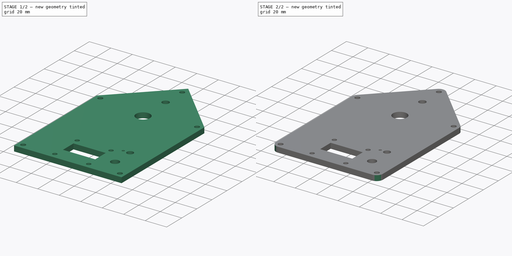
[diagram: build sequence overview — one tinted view per stage of 2, left to right]
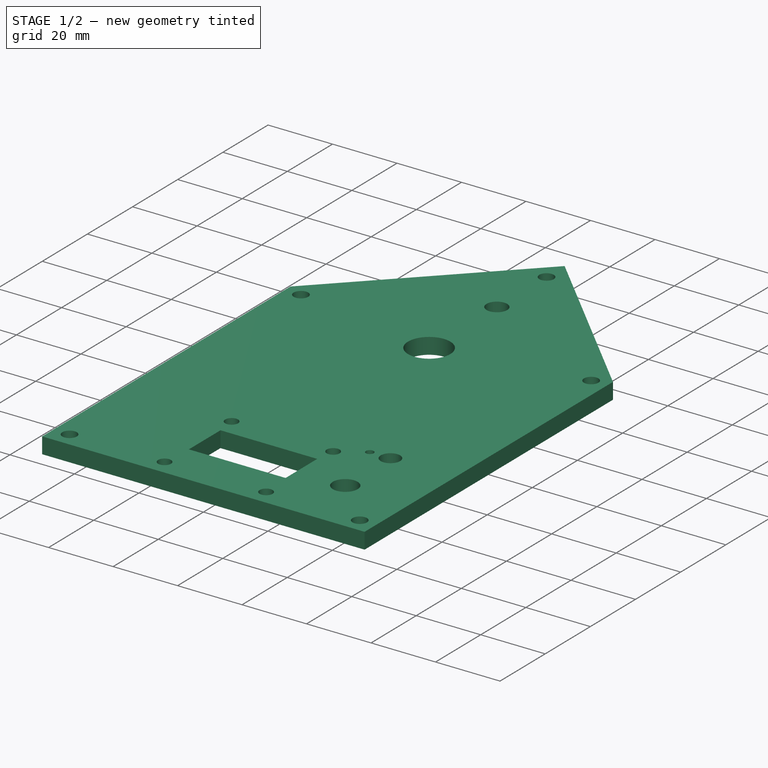
[diagram: stage 1 of 2 — iso view after this stage's code; geometry added in this stage tinted green]
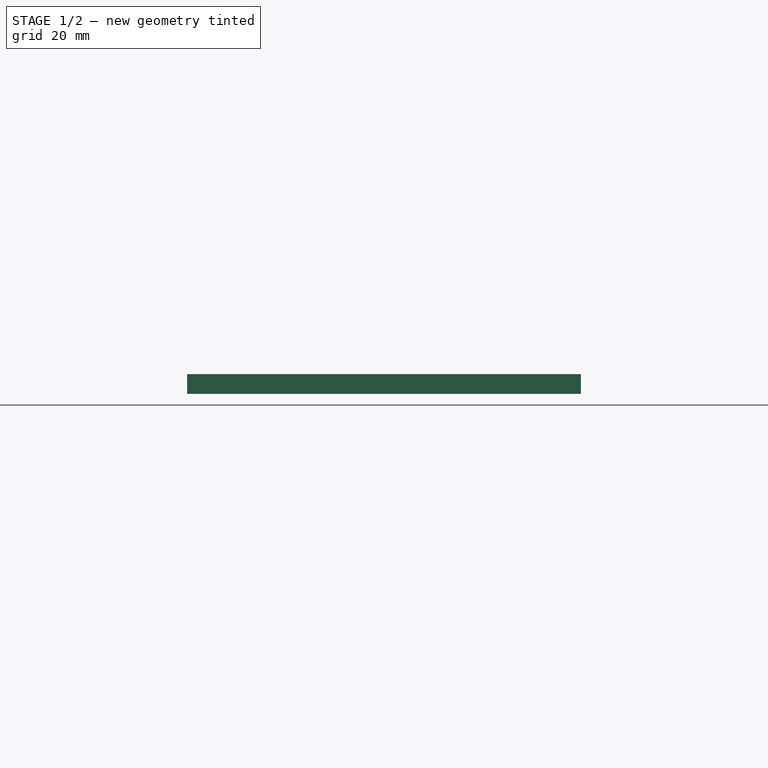
[diagram: stage 1 of 2 — front view after this stage's code; geometry added in this stage tinted green]
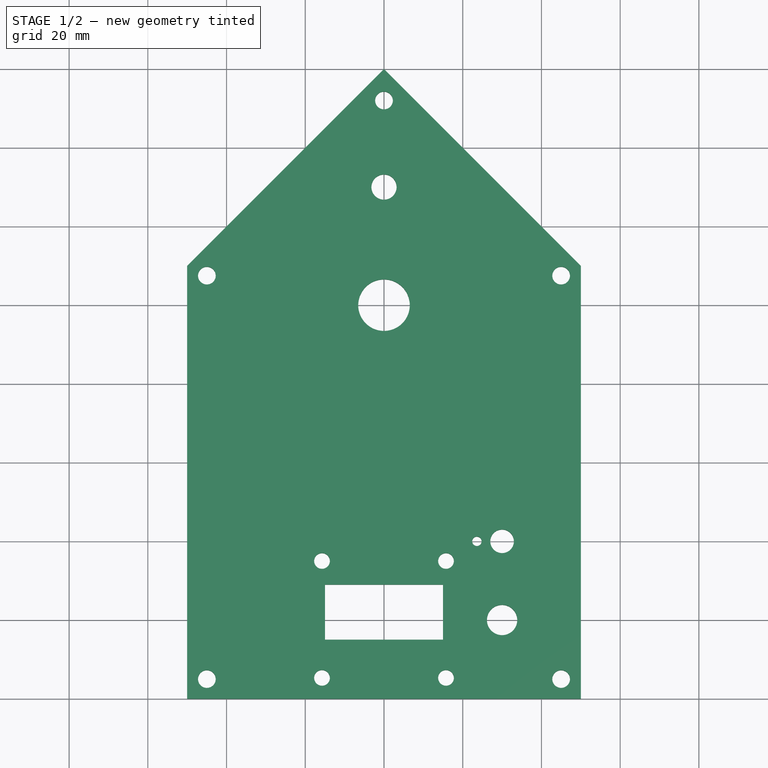
[diagram: stage 1 of 2 — top view after this stage's code; geometry added in this stage tinted green]
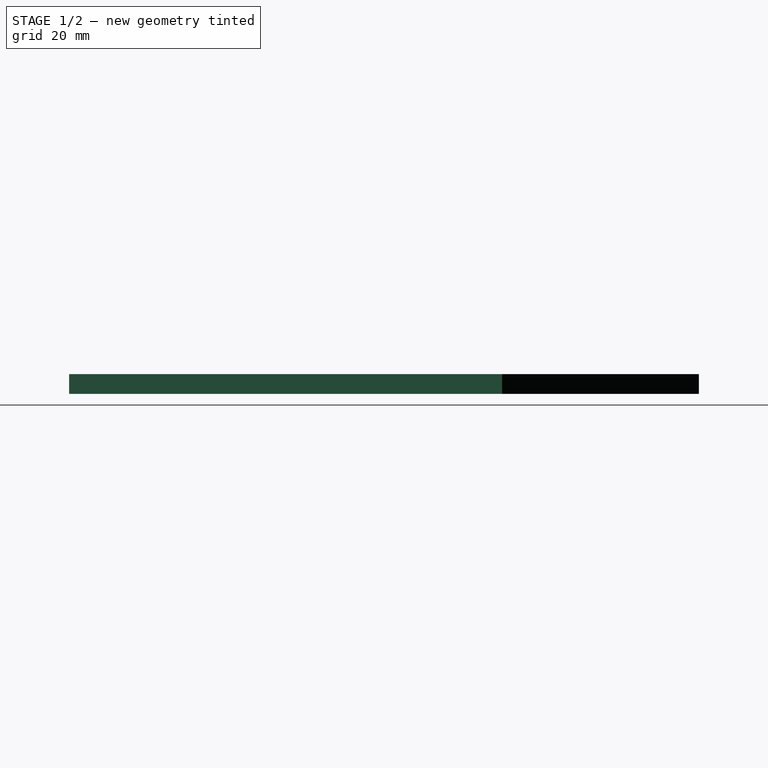
[diagram: stage 1 of 2 — right view after this stage's code; geometry added in this stage tinted green]
FCSTD DOCUMENT  (FreeCAD 0.18R16131 (Git))
Label: Top_Plate
License: All rights reserved
LicenseURL: http://en.wikipedia.org/wiki/All_rights_reserved
objects: Sketcher::SketchObject×1, PartDesign::Pad×1, PartDesign::Fillet×1, PartDesign::Body×1, Part::Feature×1
note: 6 computed .brp shape members not serialized (recipe doc carries the construction recipe); baked Part::Feature solids carry a one-line shape summary decoded from their .brp

FEATURE [Sketcher::SketchObject] Sketch
  MapMode = 5
  Support = -> [XY_Plane]
  sketch-geometry (23):
    g0: Circle CenterX=0 CenterY=0 CenterZ=0 NormalX=0 NormalY=0 NormalZ=1 AngleXU=0 Radius=6.55
    g1: LineSegment StartX=-50 StartY=-100 StartZ=0 EndX=50 EndY=-100 EndZ=0
    g2: LineSegment StartX=50 StartY=-100 StartZ=0 EndX=50 EndY=10 EndZ=0
    g3: LineSegment StartX=50 StartY=10 StartZ=0 EndX=0 EndY=60 EndZ=0
    g4: LineSegment StartX=0 StartY=60 StartZ=0 EndX=-50 EndY=10 EndZ=0
    g5: LineSegment StartX=-50 StartY=10 StartZ=0 EndX=-50 EndY=-100 EndZ=0
    g6: Circle CenterX=0 CenterY=30 CenterZ=0 NormalX=0 NormalY=0 NormalZ=1 AngleXU=0 Radius=3.2
    g7: Circle CenterX=0 CenterY=52 CenterZ=0 NormalX=0 NormalY=0 NormalZ=1 AngleXU=0 Radius=2.25
    g8: Circle CenterX=-45 CenterY=7.5 CenterZ=0 NormalX=0 NormalY=0 NormalZ=1 AngleXU=0 Radius=2.25
    g9: Circle CenterX=45 CenterY=7.5 CenterZ=0 NormalX=0 NormalY=0 NormalZ=1 AngleXU=0 Radius=2.25
    g10: Circle CenterX=-45 CenterY=-95 CenterZ=0 NormalX=0 NormalY=0 NormalZ=1 AngleXU=0 Radius=2.25
    g11: Circle CenterX=45 CenterY=-95 CenterZ=0 NormalX=0 NormalY=0 NormalZ=1 AngleXU=0 Radius=2.25
    g12: Circle CenterX=30 CenterY=-80 CenterZ=0 NormalX=0 NormalY=0 NormalZ=1 AngleXU=0 Radius=3.85
    g13: LineSegment StartX=-15 StartY=-85 StartZ=0 EndX=15 EndY=-85 EndZ=0
    g14: LineSegment StartX=15 StartY=-85 StartZ=0 EndX=15 EndY=-71 EndZ=0
    g15: LineSegment StartX=15 StartY=-71 StartZ=0 EndX=-15 EndY=-71 EndZ=0
    g16: LineSegment StartX=-15 StartY=-71 StartZ=0 EndX=-15 EndY=-85 EndZ=0
    g17: Circle CenterX=-15.75 CenterY=-65 CenterZ=0 NormalX=0 NormalY=0 NormalZ=1 AngleXU=0 Radius=2
    g18: Circle CenterX=15.75 CenterY=-65 CenterZ=0 NormalX=0 NormalY=0 NormalZ=1 AngleXU=0 Radius=2
    g19: Circle CenterX=15.75 CenterY=-94.7 CenterZ=0 NormalX=0 NormalY=0 NormalZ=1 AngleXU=0 Radius=2
    g20: Circle CenterX=-15.75 CenterY=-94.7 CenterZ=0 NormalX=0 NormalY=0 NormalZ=1 AngleXU=0 Radius=2
    g21: Circle CenterX=30 CenterY=-60 CenterZ=0 NormalX=0 NormalY=0 NormalZ=1 AngleXU=0 Radius=3
    g22: Circle CenterX=23.6 CenterY=-60 CenterZ=0 NormalX=0 NormalY=0 NormalZ=1 AngleXU=0 Radius=1.2
  constraints (62):
    c: Coincident(g0,g-1)
    c: Radius(g0) = 6.55
    c: Coincident(g2,g1)
    c: Vertical(g2)
    c: Coincident(g3,g2)
    c: PointOnObject(g3,g-2)
    c: Coincident(g4,g3)
    c: Coincident(g5,g4)
    c: Coincident(g5,g1)
    c: Symmetric(g1,g1,g-2)
    c: Symmetric(g2,g4,g-2)
    c: DistanceX(g4,g2) = 100
    c: PointOnObject(g6,g-2)
    c: Radius(g6) = 3.2
    c: Angle(g3,g2) = 2.35619
    c: PointOnObject(g7,g-2)
    c: Symmetric(g8,g9,g-2)
    c: Symmetric(g10,g11,g-2)
    c: Radius(g7) = 2.25
    c: Equal(g7,g8)
    c: Equal(g7,g10)
    c: Equal(g7,g11)
    c: Equal(g7,g9)
    c: DistanceY(g8,g4) = 2.5
    c: DistanceX(g4,g8) = 5
    c: DistanceY(g2,g2) = 110
    c: DistanceX(g1,g10) = 5
    c: DistanceY(g1,g10) = 5
    c: DistanceY(g-1,g3) = 60
    c: DistanceY(g7,g3) = 8
    c: DistanceY(g-1,g6) = 30
    c: Radius(g12) = 3.85
    c: Coincident(g13,g14)
    c: Coincident(g14,g15)
    c: Coincident(g15,g16)
    c: Coincident(g16,g13)
    c: Horizontal(g13)
    c: Vertical(g14)
    c: Vertical(g16)
    c: DistanceY(g16,g16) = 14
    c: DistanceX(g15,g15) = 30
    c: Symmetric(g15,g14,g-2)
    c: Vertical(g17,g20)
    c: Vertical(g18,g19)
    c: Horizontal(g19,g20)
    c: Symmetric(g17,g18,g-2)
    c: DistanceX(g17,g18) = 31.5
    c: DistanceY(g20,g17) = 29.7
    c: DistanceY(g15,g17) = 6
    c: Radius(g21) = 3
    c: Radius(g22) = 1.2
    c: Radius(g17) = 2
    c: Equal(g17,g20)
    c: Equal(g17,g19)
    c: Equal(g17,g18)
    c: DistanceY(g1,g13) = 15
    c: DistanceX(g22,g21) = 6.4
    c: Horizontal(g21,g22)
    c: Vertical(g12,g21)
    c: DistanceX(g12,g1) = 20
    c: DistanceY(g1,g12) = 20
    c: DistanceY(g12,g21) = 20
FEATURE [PartDesign::Pad] Pad
  Length = 5
  Length2 = 100
  Profile = -> Sketch
  Type = 0
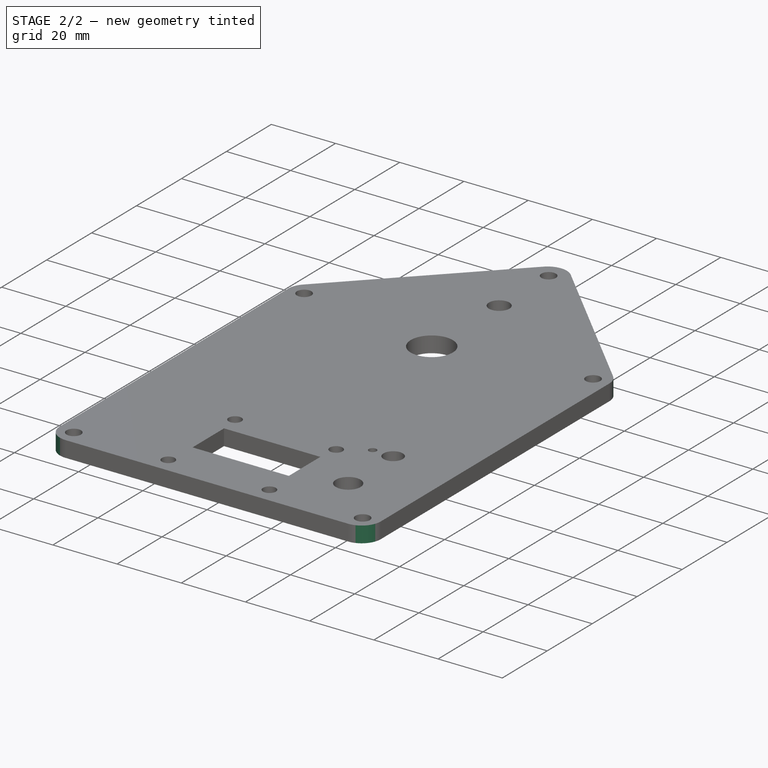
[diagram: stage 2 of 2 — iso view after this stage's code; geometry added in this stage tinted green]
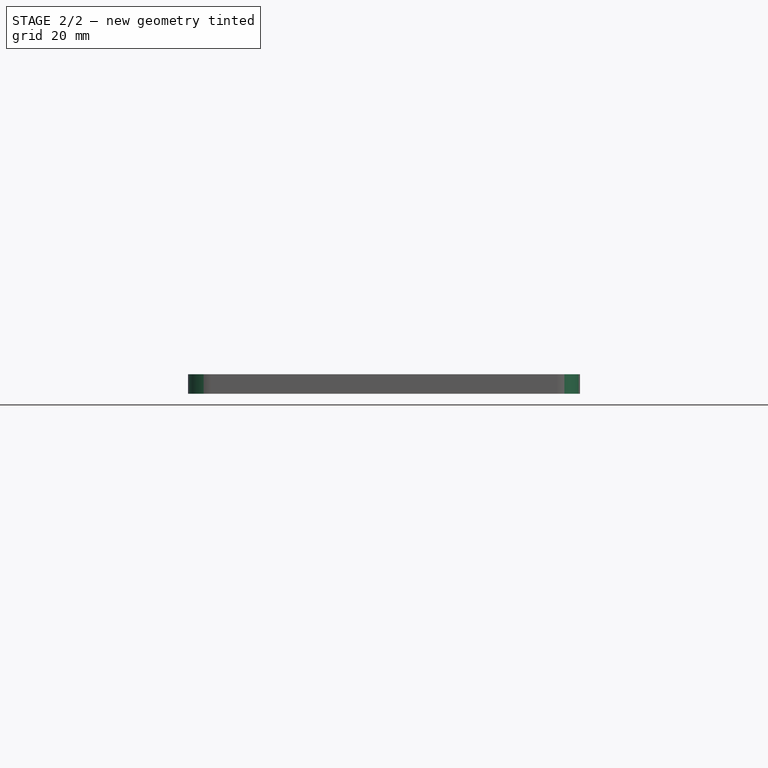
[diagram: stage 2 of 2 — front view after this stage's code; geometry added in this stage tinted green]
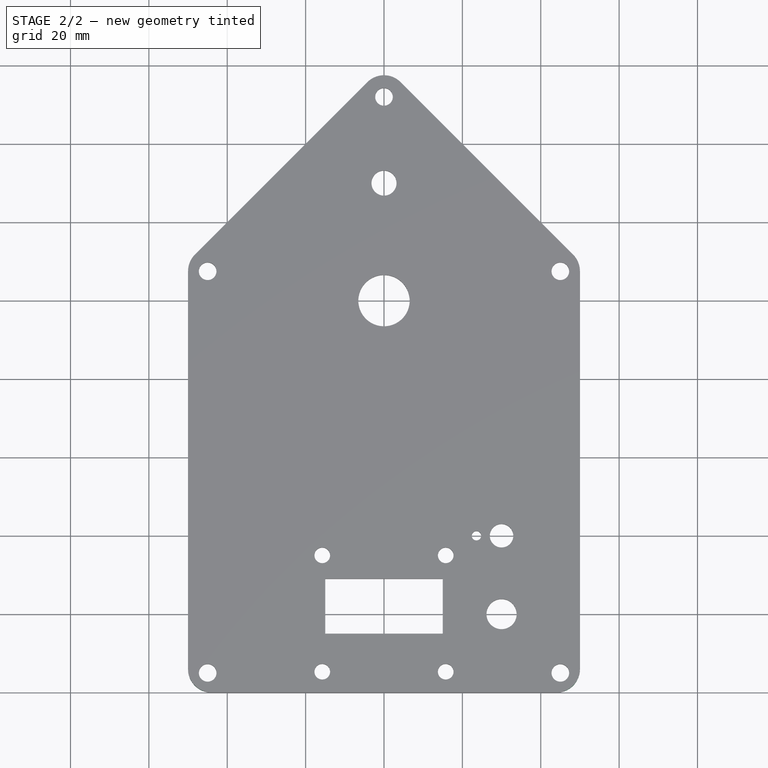
[diagram: stage 2 of 2 — top view after this stage's code; geometry added in this stage tinted green]
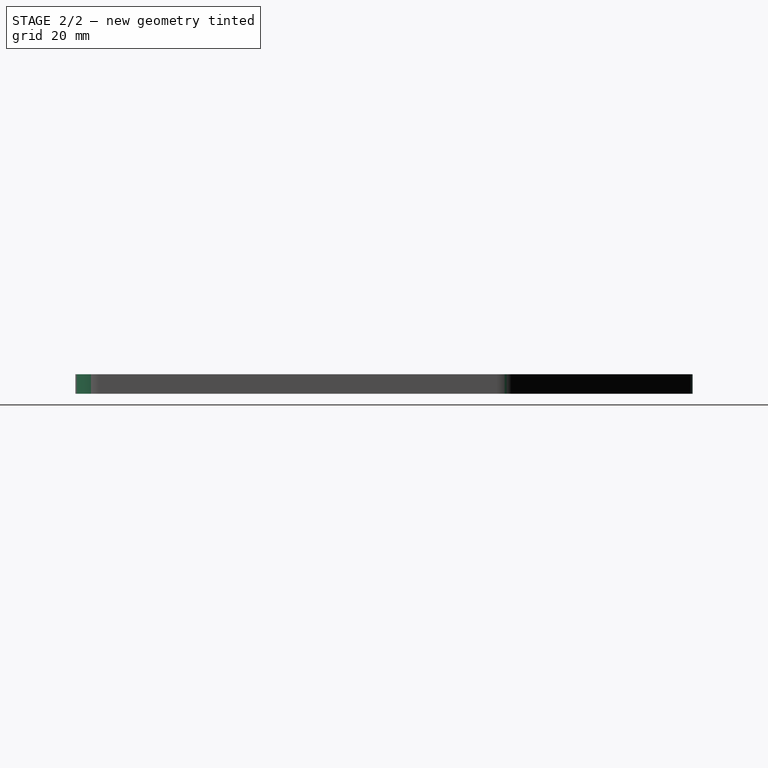
[diagram: stage 2 of 2 — right view after this stage's code; geometry added in this stage tinted green]
FEATURE [PartDesign::Fillet] Fillet
  Base = -> Pad [Edge2,Edge1,Edge11,Edge8,Edge5]
  BaseFeature = -> Pad
  Radius = 6
FEATURE [PartDesign::Body] Body
  Group = -> [Sketch,Pad,Fillet]
  Origin = -> Origin
  Tip = -> Fillet
FEATURE [Part::Feature] Chamfer002001  label="Chamfer003"
  shape: bbox 100 x 157.5 x 6 mm, 49 faces (baked)
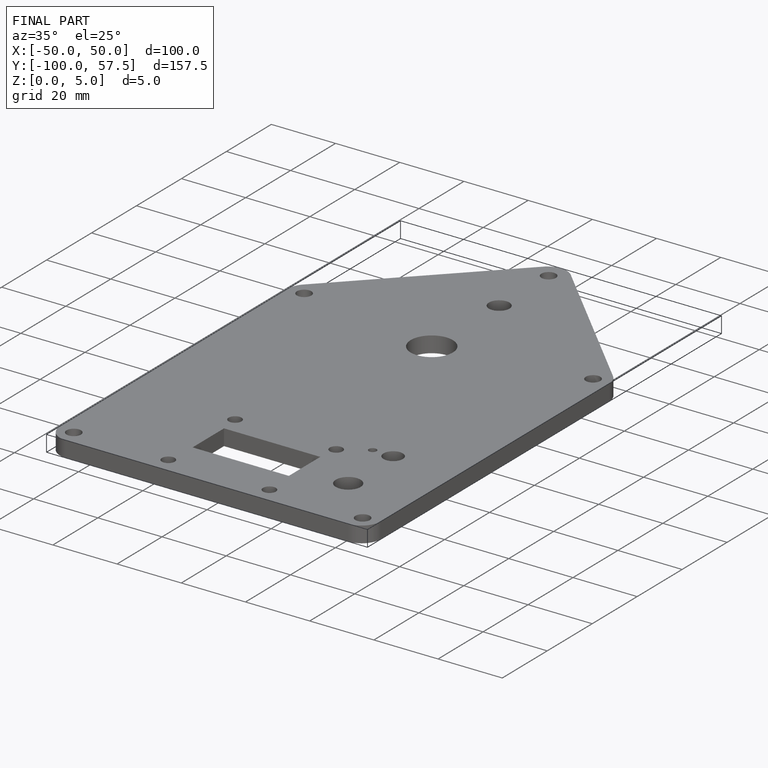
[diagram: finished part — iso view with bounding-box wireframe]
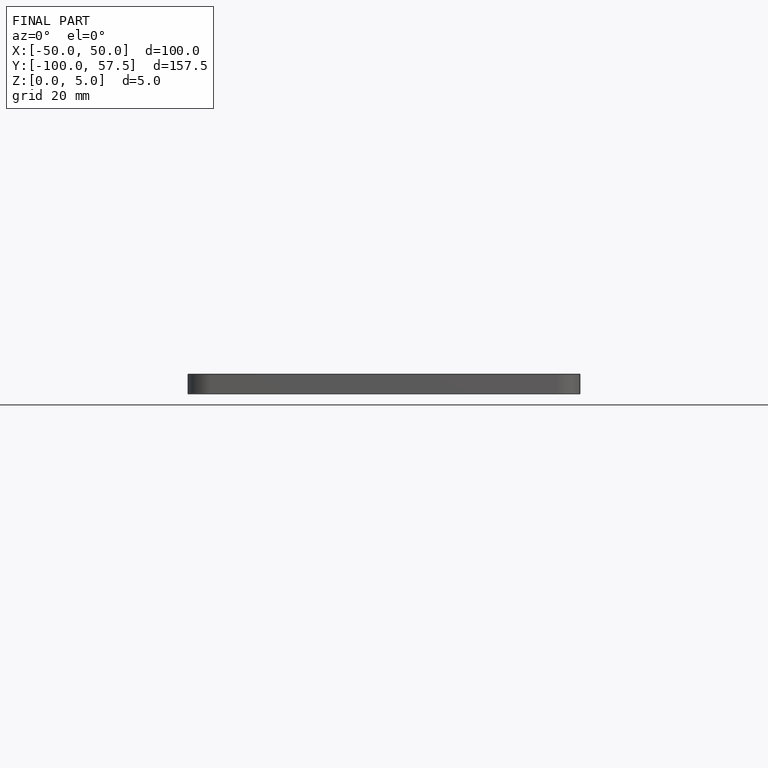
[diagram: finished part — front view with bounding-box wireframe]
